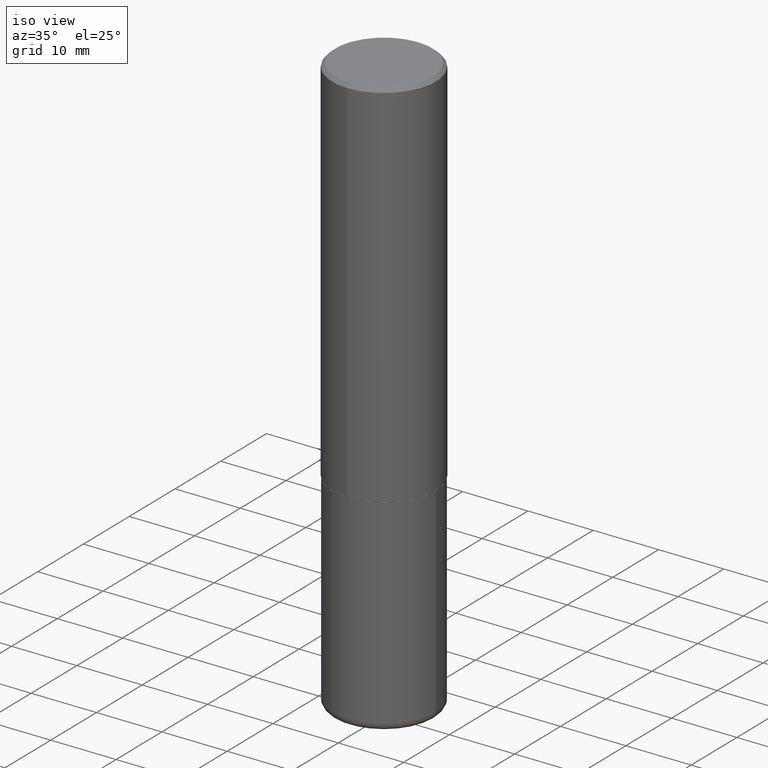
[diagram: clean part render]
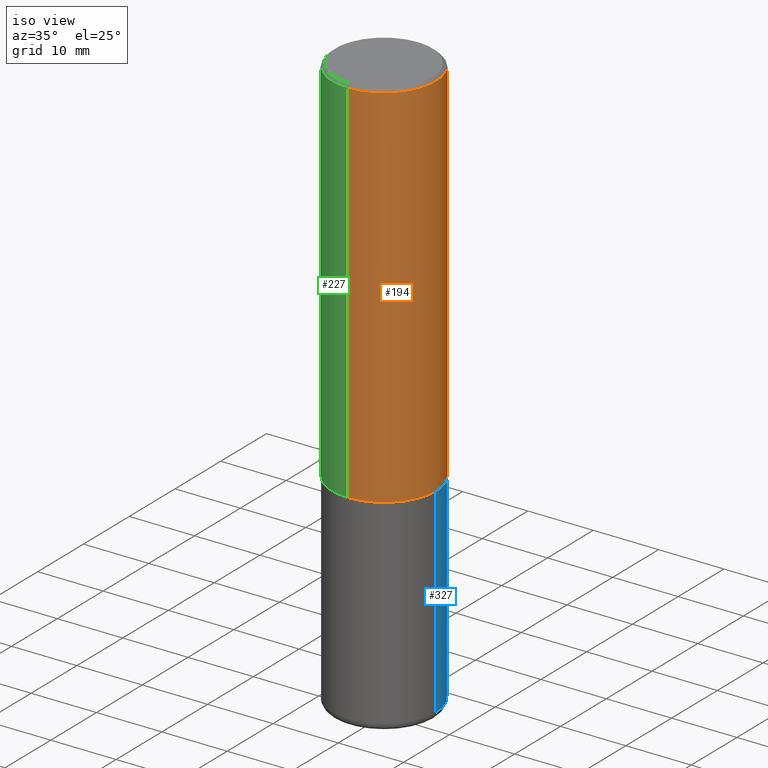
[diagram: same view with three faces highlighted in distinct colors, each labeled with its STEP entity id]
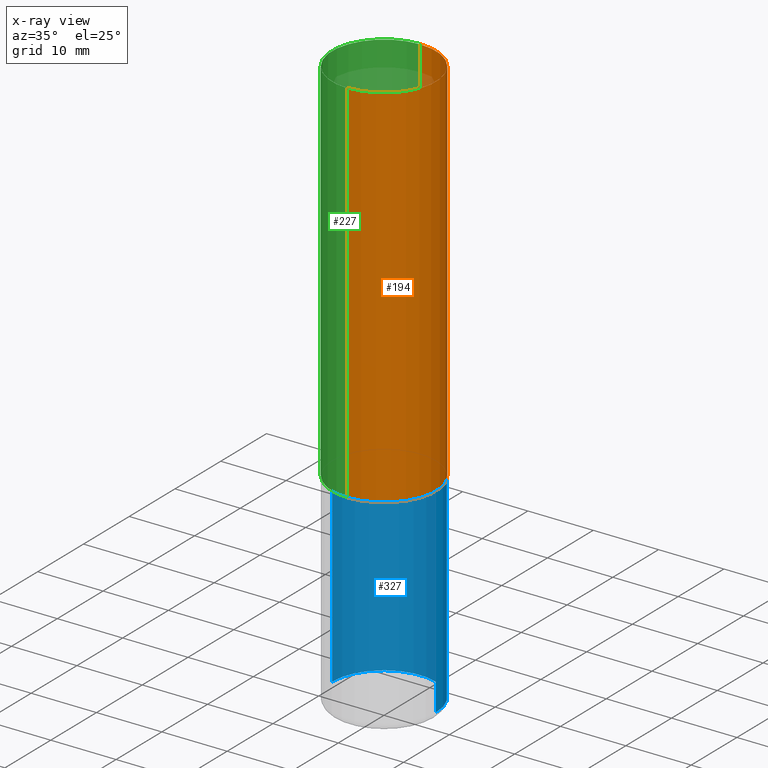
[diagram: x-ray of the same camera — body ghosted, the three highlighted faces saturated]
A machine part, iso view with three faces highlighted in distinct colors.
The next image is the same camera in x-ray (body ghosted, the three faces saturated) — at least one of them is partly hidden behind the body in this view.
Their STEP definitions:

[orange] entity #194 — the highlighted cylindrical surface (partial cylindrical patch) has radius 7.9375 mm, axis along (-0, 0, 1).
#5 = EDGE_CURVE ( 'NONE', #77, #182, #117, .T. ) ;
#13 = VERTEX_POINT ( 'NONE', #374 ) ;
#21 = ORIENTED_EDGE ( 'NONE', *, *, #190, .T. ) ;
#29 = DIRECTION ( 'NONE',  ( -6.982962677686265133E-15, -1.000000000000000000, 3.490333340136304366E-15 ) ) ;
#39 = ORIENTED_EDGE ( 'NONE', *, *, #62, .F. ) ;
#46 = CARTESIAN_POINT ( 'NONE',  ( 2.220446049250313475E-15, 0.3125000000000001665, -1.090729168792595755E-15 ) ) ;
#56 = DIRECTION ( 'NONE',  ( -6.982962677686265922E-15, -1.000000000000000000, 3.496765431890253764E-15 ) ) ;
#61 = CYLINDRICAL_SURFACE ( 'NONE', #291, 0.3125000000000001665 ) ;
#62 = EDGE_CURVE ( 'NONE', #13, #182, #87, .T. ) ;
#77 = VERTEX_POINT ( 'NONE', #304 ) ;
#87 = CIRCLE ( 'NONE', #413, 0.3125000000000000000 ) ;
#117 = LINE ( 'NONE', #46, #321 ) ;
#141 = ORIENTED_EDGE ( 'NONE', *, *, #297, .F. ) ;
#154 = DIRECTION ( 'NONE',  ( -2.446270449397526161E-29, 3.490333340136305154E-15, 1.000000000000000000 ) ) ;
#166 = CARTESIAN_POINT ( 'NONE',  ( 2.182175836776958741E-15, 0.3124999999999999445, -0.02000000000000116268 ) ) ;
#179 = DIRECTION ( 'NONE',  ( -2.446270449397526161E-29, 3.490333340136305154E-15, 1.000000000000000000 ) ) ;
#182 = VERTEX_POINT ( 'NONE', #166 ) ;
#190 = EDGE_CURVE ( 'NONE', #278, #77, #290, .T. ) ;
#194 = ADVANCED_FACE ( 'NONE', ( #352 ), #61, .T. ) ;
#195 = DIRECTION ( 'NONE',  ( -2.446270449397526442E-29, 3.490333340136305154E-15, 1.000000000000000000 ) ) ;
#217 = ORIENTED_EDGE ( 'NONE', *, *, #5, .T. ) ;
#221 = DIRECTION ( 'NONE',  ( -2.446270449397526442E-29, 3.490333340136305154E-15, 1.000000000000000000 ) ) ;
#223 = VECTOR ( 'NONE', #179, 39.37007874015748143 ) ;
#226 = EDGE_LOOP ( 'NONE', ( #21, #217, #39, #141 ) ) ;
#234 = CARTESIAN_POINT ( 'NONE',  ( 5.501662240695034719E-29, -7.849759681966548232E-15, -2.248999999999999222 ) ) ;
#275 = CARTESIAN_POINT ( 'NONE',  ( 4.892540898795069594E-31, -6.980666680272634172E-17, -0.02000000000000006981 ) ) ;
#278 = VERTEX_POINT ( 'NONE', #397 ) ;
#285 = AXIS2_PLACEMENT_3D ( 'NONE', #234, #347, #56 ) ;
#290 = CIRCLE ( 'NONE', #285, 0.3125000000000002776 ) ;
#291 = AXIS2_PLACEMENT_3D ( 'NONE', #322, #195, #29 ) ;
#297 = EDGE_CURVE ( 'NONE', #278, #13, #356, .T. ) ;
#304 = CARTESIAN_POINT ( 'NONE',  ( 2.220446049250341874E-15, 0.3124999999999924505, -2.249000000000000554 ) ) ;
#321 = VECTOR ( 'NONE', #154, 39.37007874015748143 ) ;
#322 = CARTESIAN_POINT ( 'NONE',  ( 0.000000000000000000, 0.000000000000000000, 0.000000000000000000 ) ) ;
#330 = CARTESIAN_POINT ( 'NONE',  ( -2.182175836776959136E-15, -0.3125000000000001665, 1.090729168792595755E-15 ) ) ;
#347 = DIRECTION ( 'NONE',  ( -2.446270449397526442E-29, 3.490333340136305154E-15, 1.000000000000000000 ) ) ;
#352 = FACE_OUTER_BOUND ( 'NONE', #226, .T. ) ;
#356 = LINE ( 'NONE', #330, #223 ) ;
#374 = CARTESIAN_POINT ( 'NONE',  ( -2.143905624303602824E-15, -0.3125000000000000555, -0.01999999999999897693 ) ) ;
#397 = CARTESIAN_POINT ( 'NONE',  ( -2.182175836776905099E-15, -0.3125000000000081601, -2.248999999999998334 ) ) ;
#408 = DIRECTION ( 'NONE',  ( -6.982962677686265133E-15, -1.000000000000000000, 3.496765431890256920E-15 ) ) ;
#413 = AXIS2_PLACEMENT_3D ( 'NONE', #275, #221, #408 ) ;

[blue] entity #327 — the highlighted cylindrical surface (partial cylindrical patch) has radius 7.9375 mm, axis along (-0, 0, 1).
#9 = CARTESIAN_POINT ( 'NONE',  ( 5.502304813916556222E-29, -7.855833012397075293E-15, -2.249999999999999556 ) ) ;
#15 = ORIENTED_EDGE ( 'NONE', *, *, #334, .T. ) ;
#18 = VECTOR ( 'NONE', #236, 39.37007874015748143 ) ;
#52 = ORIENTED_EDGE ( 'NONE', *, *, #246, .F. ) ;
#67 = CIRCLE ( 'NONE', #204, 0.3125000000000000000 ) ;
#70 = CARTESIAN_POINT ( 'NONE',  ( 0.3125000000000000000, -1.003800884917403364E-14, -2.249999999999999556 ) ) ;
#93 = LINE ( 'NONE', #169, #18 ) ;
#102 = EDGE_CURVE ( 'NONE', #306, #274, #123, .T. ) ;
#110 = ORIENTED_EDGE ( 'NONE', *, *, #382, .T. ) ;
#123 = LINE ( 'NONE', #261, #346 ) ;
#130 = DIRECTION ( 'NONE',  ( -2.445468806185136597E-29, 3.491481338843145583E-15, 1.000000000000000000 ) ) ;
#163 = CARTESIAN_POINT ( 'NONE',  ( 0.000000000000000000, 0.000000000000000000, 0.000000000000000000 ) ) ;
#169 = CARTESIAN_POINT ( 'NONE',  ( -0.3125000000000000000, 2.220446049250313081E-15, -1.537167215704658232E-29 ) ) ;
#171 = DIRECTION ( 'NONE',  ( -2.445468806185136597E-29, 3.491481338843145583E-15, 1.000000000000000000 ) ) ;
#188 = ORIENTED_EDGE ( 'NONE', *, *, #102, .F. ) ;
#191 = AXIS2_PLACEMENT_3D ( 'NONE', #9, #171, #361 ) ;
#196 = DIRECTION ( 'NONE',  ( -2.445468806185136877E-29, 3.491481338843145188E-15, 1.000000000000000000 ) ) ;
#202 = CARTESIAN_POINT ( 'NONE',  ( -0.3125000000000000555, -9.842621976452751474E-15, -3.454999999999999627 ) ) ;
#204 = AXIS2_PLACEMENT_3D ( 'NONE', #380, #130, #349 ) ;
#232 = CYLINDRICAL_SURFACE ( 'NONE', #270, 0.3125000000000000000 ) ;
#236 = DIRECTION ( 'NONE',  ( -2.445468806185136877E-29, 3.491481338843145188E-15, 1.000000000000000000 ) ) ;
#242 = CIRCLE ( 'NONE', #191, 0.3125000000000000000 ) ;
#246 = EDGE_CURVE ( 'NONE', #274, #312, #242, .T. ) ;
#253 = VERTEX_POINT ( 'NONE', #202 ) ;
#261 = CARTESIAN_POINT ( 'NONE',  ( 0.3125000000000000000, -2.182175836776958347E-15, 1.523805242436230075E-29 ) ) ;
#270 = AXIS2_PLACEMENT_3D ( 'NONE', #163, #284, #416 ) ;
#274 = VERTEX_POINT ( 'NONE', #70 ) ;
#284 = DIRECTION ( 'NONE',  ( -2.445468806185136597E-29, 3.491481338843145583E-15, 1.000000000000000000 ) ) ;
#299 = CARTESIAN_POINT ( 'NONE',  ( 0.3125000000000000555, -1.424524386248002448E-14, -3.454999999999999627 ) ) ;
#306 = VERTEX_POINT ( 'NONE', #299 ) ;
#312 = VERTEX_POINT ( 'NONE', #363 ) ;
#326 = EDGE_LOOP ( 'NONE', ( #15, #110, #52, #188 ) ) ;
#327 = ADVANCED_FACE ( 'NONE', ( #348 ), #232, .T. ) ;
#334 = EDGE_CURVE ( 'NONE', #306, #253, #67, .T. ) ;
#346 = VECTOR ( 'NONE', #196, 39.37007874015748143 ) ;
#348 = FACE_OUTER_BOUND ( 'NONE', #326, .T. ) ;
#349 = DIRECTION ( 'NONE',  ( 1.000000000000000000, -6.982962677686269077E-15, 0.000000000000000000 ) ) ;
#361 = DIRECTION ( 'NONE',  ( 1.000000000000000000, -6.982962677686265133E-15, 0.000000000000000000 ) ) ;
#363 = CARTESIAN_POINT ( 'NONE',  ( -0.3125000000000000000, -7.739004469799756843E-15, -2.249999999999999556 ) ) ;
#380 = CARTESIAN_POINT ( 'NONE',  ( 8.449094725369646135E-29, -1.206306802570306613E-14, -3.454999999999999627 ) ) ;
#382 = EDGE_CURVE ( 'NONE', #253, #312, #93, .T. ) ;
#416 = DIRECTION ( 'NONE',  ( 1.000000000000000000, -6.982962677686266711E-15, 4.876176775795936353E-29 ) ) ;

[green] entity #227 — the highlighted cylindrical surface (partial cylindrical patch) has radius 7.9375 mm, axis along (-0, 0, 1).
#4 = CIRCLE ( 'NONE', #255, 0.3125000000000000000 ) ;
#5 = EDGE_CURVE ( 'NONE', #77, #182, #117, .T. ) ;
#13 = VERTEX_POINT ( 'NONE', #374 ) ;
#30 = AXIS2_PLACEMENT_3D ( 'NONE', #82, #373, #131 ) ;
#31 = DIRECTION ( 'NONE',  ( -2.446270449397526442E-29, 3.490333340136305154E-15, 1.000000000000000000 ) ) ;
#44 = ORIENTED_EDGE ( 'NONE', *, *, #297, .T. ) ;
#46 = CARTESIAN_POINT ( 'NONE',  ( 2.220446049250313475E-15, 0.3125000000000001665, -1.090729168792595755E-15 ) ) ;
#50 = CARTESIAN_POINT ( 'NONE',  ( 4.892540898795069594E-31, -6.980666680272634172E-17, -0.02000000000000006981 ) ) ;
#77 = VERTEX_POINT ( 'NONE', #304 ) ;
#82 = CARTESIAN_POINT ( 'NONE',  ( 5.501662240695034719E-29, -7.849759681966548232E-15, -2.248999999999999222 ) ) ;
#117 = LINE ( 'NONE', #46, #321 ) ;
#131 = DIRECTION ( 'NONE',  ( -6.982962677686265922E-15, -1.000000000000000000, 3.496765431890253764E-15 ) ) ;
#154 = DIRECTION ( 'NONE',  ( -2.446270449397526161E-29, 3.490333340136305154E-15, 1.000000000000000000 ) ) ;
#166 = CARTESIAN_POINT ( 'NONE',  ( 2.182175836776958741E-15, 0.3124999999999999445, -0.02000000000000116268 ) ) ;
#179 = DIRECTION ( 'NONE',  ( -2.446270449397526161E-29, 3.490333340136305154E-15, 1.000000000000000000 ) ) ;
#182 = VERTEX_POINT ( 'NONE', #166 ) ;
#211 = ORIENTED_EDGE ( 'NONE', *, *, #371, .F. ) ;
#213 = DIRECTION ( 'NONE',  ( -2.446270449397526442E-29, 3.490333340136305154E-15, 1.000000000000000000 ) ) ;
#223 = VECTOR ( 'NONE', #179, 39.37007874015748143 ) ;
#227 = ADVANCED_FACE ( 'NONE', ( #333 ), #269, .T. ) ;
#255 = AXIS2_PLACEMENT_3D ( 'NONE', #50, #213, #335 ) ;
#269 = CYLINDRICAL_SURFACE ( 'NONE', #406, 0.3125000000000001665 ) ;
#273 = ORIENTED_EDGE ( 'NONE', *, *, #323, .T. ) ;
#278 = VERTEX_POINT ( 'NONE', #397 ) ;
#296 = DIRECTION ( 'NONE',  ( -6.982962677686265133E-15, -1.000000000000000000, 3.490333340136304366E-15 ) ) ;
#297 = EDGE_CURVE ( 'NONE', #278, #13, #356, .T. ) ;
#304 = CARTESIAN_POINT ( 'NONE',  ( 2.220446049250341874E-15, 0.3124999999999924505, -2.249000000000000554 ) ) ;
#321 = VECTOR ( 'NONE', #154, 39.37007874015748143 ) ;
#323 = EDGE_CURVE ( 'NONE', #77, #278, #340, .T. ) ;
#330 = CARTESIAN_POINT ( 'NONE',  ( -2.182175836776959136E-15, -0.3125000000000001665, 1.090729168792595755E-15 ) ) ;
#333 = FACE_OUTER_BOUND ( 'NONE', #400, .T. ) ;
#335 = DIRECTION ( 'NONE',  ( -6.982962677686265133E-15, -1.000000000000000000, 3.496765431890256920E-15 ) ) ;
#340 = CIRCLE ( 'NONE', #30, 0.3125000000000002776 ) ;
#343 = ORIENTED_EDGE ( 'NONE', *, *, #5, .F. ) ;
#356 = LINE ( 'NONE', #330, #223 ) ;
#371 = EDGE_CURVE ( 'NONE', #182, #13, #4, .T. ) ;
#373 = DIRECTION ( 'NONE',  ( -2.446270449397526442E-29, 3.490333340136305154E-15, 1.000000000000000000 ) ) ;
#374 = CARTESIAN_POINT ( 'NONE',  ( -2.143905624303602824E-15, -0.3125000000000000555, -0.01999999999999897693 ) ) ;
#392 = CARTESIAN_POINT ( 'NONE',  ( 0.000000000000000000, 0.000000000000000000, 0.000000000000000000 ) ) ;
#397 = CARTESIAN_POINT ( 'NONE',  ( -2.182175836776905099E-15, -0.3125000000000081601, -2.248999999999998334 ) ) ;
#400 = EDGE_LOOP ( 'NONE', ( #343, #273, #44, #211 ) ) ;
#406 = AXIS2_PLACEMENT_3D ( 'NONE', #392, #31, #296 ) ;